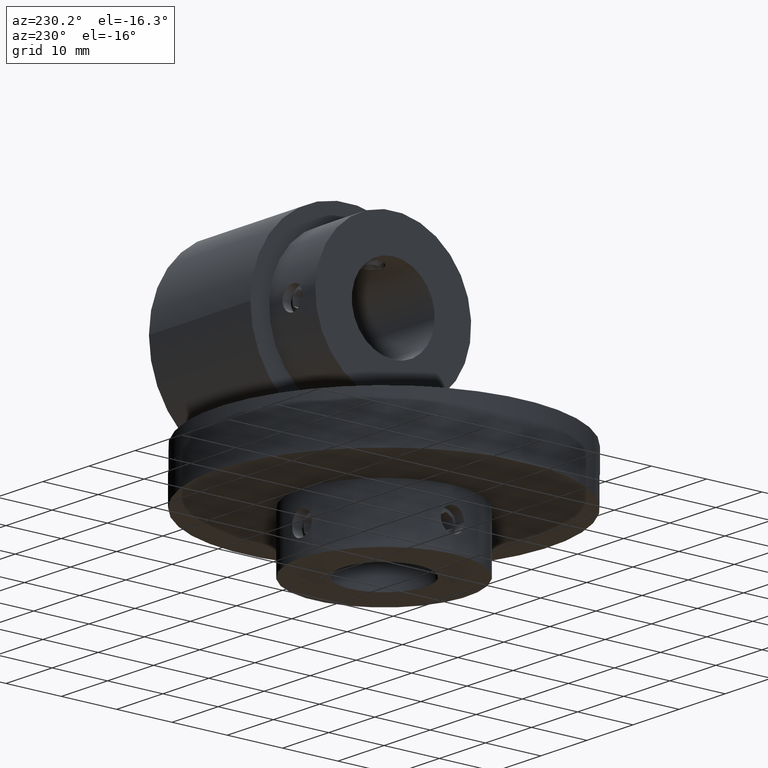
[diagram: clean part render]
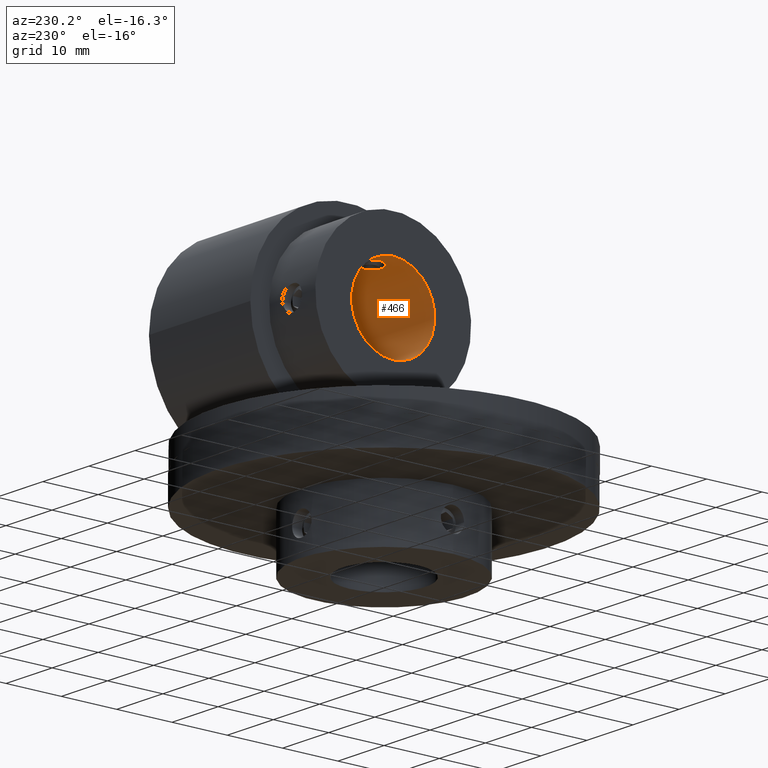
[diagram: same view with one face highlighted and labeled with its STEP entity id]
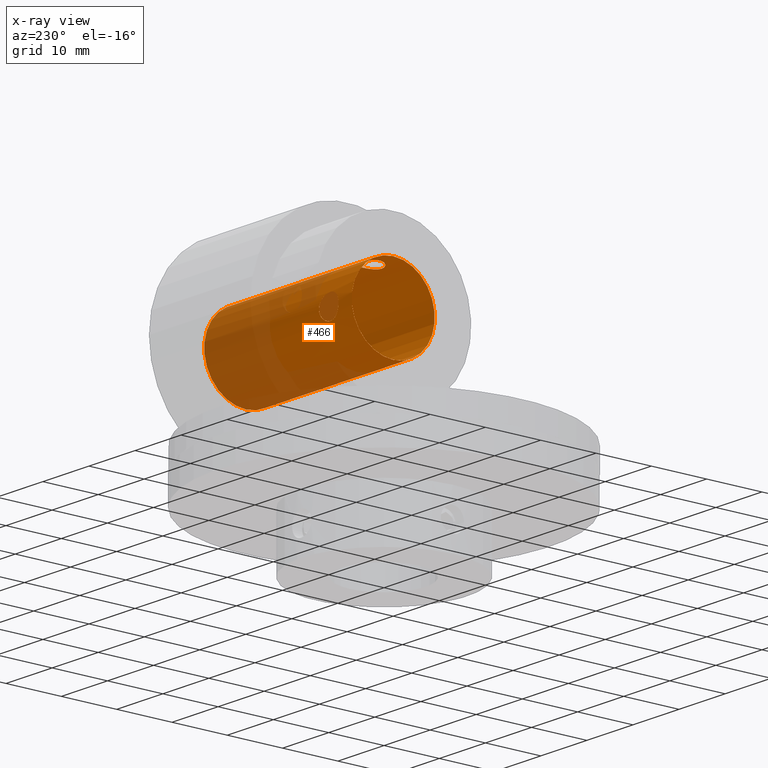
[diagram: x-ray of the same camera — body ghosted, the highlighted face saturated]
A machine part, auxiliary view. The second image highlights one B-rep face of the part: STEP entity #466.
The next image is the same camera in x-ray: the body ghosted, the highlighted face saturated — about 43% of this face is hidden behind the body in this view.
In plain terms, the highlighted cylindrical surface (bore or boss wall) has radius 7.5 mm, axis along (-1, -0, -0).
Its self-contained STEP definition (entity closure, byte-faithful):
#466 = ADVANCED_FACE( '', ( #579, #580, #581, #582 ), #583, .F. );
#579 = FACE_BOUND( '', #763, .T. );
#580 = FACE_OUTER_BOUND( '', #764, .T. );
#581 = FACE_OUTER_BOUND( '', #765, .T. );
#582 = FACE_BOUND( '', #766, .T. );
#583 = CYLINDRICAL_SURFACE( '', #767, 7.50000000000000 );
#763 = EDGE_LOOP( '', ( #973 ) );
#764 = EDGE_LOOP( '', ( #974 ) );
#765 = EDGE_LOOP( '', ( #975 ) );
#766 = EDGE_LOOP( '', ( #976 ) );
#767 = AXIS2_PLACEMENT_3D( '', #977, #978, #979 );
#973 = ORIENTED_EDGE( '', *, *, #1352, .T. );
#974 = ORIENTED_EDGE( '', *, *, #1353, .F. );
#975 = ORIENTED_EDGE( '', *, *, #1354, .T. );
#976 = ORIENTED_EDGE( '', *, *, #1355, .T. );
#977 = CARTESIAN_POINT( '', ( -2.00000000000000, 0.000000000000000, 46.0000000000000 ) );
#978 = DIRECTION( '', ( -1.00000000000000, -0.000000000000000, -0.000000000000000 ) );
#979 = DIRECTION( '', ( 0.000000000000000, -1.83690953073357E-016, -1.00000000000000 ) );
#1352 = EDGE_CURVE( '', #1486, #1486, #1487, .T. );
#1353 = EDGE_CURVE( '', #1488, #1488, #1489, .T. );
#1354 = EDGE_CURVE( '', #1490, #1490, #1491, .T. );
#1355 = EDGE_CURVE( '', #1492, #1492, #1493, .T. );
#1486 = VERTEX_POINT( '', #2020 );
#1487 = B_SPLINE_CURVE_WITH_KNOTS( '', 3, ( #2021, #2022, #2023, #2024, #2025, #2026, #2027, #2028, #2029, #2030, #2031, #2032, #2033, #2034, #2035, #2036, #2037, #2038, #2039, #2040, #2041, #2042, #2043, #2044, #2045, #2046, #2047, #2048, #2049, #2050, #2051, #2052, #2053, #2054, #2055, #2056, #2057, #2058, #2059, #2060, #2061, #2062, #2063, #2064, #2065, #2066, #2067, #2068, #2069, #2070, #2071, #2072, #2073, #2074, #2075, #2076, #2077, #2078 ), .UNSPECIFIED., .T., .F., ( 2, 2, 2, 2, 2, 2, 2, 2, 2, 2, 2, 2, 2, 2, 2, 2, 2, 2, 2, 2, 2, 2, 2, 2, 2, 2, 2, 2, 2, 2, 2 ), ( -0.000412356743134424, 0.000000000000000, 0.000412356743134419, 0.000824713486268838, 0.00123707022940326, 0.00164942697253768, 0.00247414045880650, 0.00288649720194091, 0.00329885394507533, 0.00371121068820974, 0.00412356743134415, 0.00494828091761297, 0.00536063766074739, 0.00577299440388181, 0.00618535114701623, 0.00659770789015065, 0.00742242137641949, 0.00783477811955391, 0.00824713486268834, 0.00865949160582276, 0.00907184834895719, 0.00948420509209161, 0.00989656183522603, 0.0103089185783605, 0.0107212753214949, 0.0115459888077637, 0.0119583455508982, 0.0123707022940326, 0.0127830590371670, 0.0131954157803014, 0.0136077725234358 ), .UNSPECIFIED. );
#1488 = VERTEX_POINT( '', #2079 );
#1489 = CIRCLE( '', #2080, 7.50000000000000 );
#1490 = VERTEX_POINT( '', #2081 );
#1491 = CIRCLE( '', #2082, 7.50000000000000 );
#1492 = VERTEX_POINT( '', #2083 );
#1493 = B_SPLINE_CURVE_WITH_KNOTS( '', 3, ( #2084, #2085, #2086, #2087, #2088, #2089, #2090, #2091, #2092, #2093, #2094, #2095, #2096, #2097, #2098, #2099, #2100, #2101, #2102, #2103, #2104, #2105, #2106, #2107, #2108, #2109, #2110, #2111, #2112, #2113, #2114, #2115, #2116, #2117, #2118, #2119, #2120, #2121, #2122, #2123, #2124, #2125, #2126, #2127, #2128, #2129, #2130, #2131, #2132, #2133, #2134, #2135, #2136, #2137, #2138, #2139, #2140, #2141 ), .UNSPECIFIED., .T., .F., ( 2, 2, 2, 2, 2, 2, 2, 2, 2, 2, 2, 2, 2, 2, 2, 2, 2, 2, 2, 2, 2, 2, 2, 2, 2, 2, 2, 2, 2, 2, 2 ), ( -0.000412356743134420, 0.000000000000000, 0.000412356743134417, 0.000824713486268834, 0.00123707022940325, 0.00164942697253767, 0.00247414045880650, 0.00288649720194092, 0.00329885394507534, 0.00371121068820976, 0.00412356743134418, 0.00494828091761301, 0.00536063766074743, 0.00577299440388185, 0.00618535114701627, 0.00659770789015069, 0.00742242137641952, 0.00783477811955394, 0.00824713486268836, 0.00865949160582278, 0.00907184834895720, 0.00948420509209161, 0.00989656183522603, 0.0103089185783605, 0.0107212753214949, 0.0115459888077637, 0.0119583455508981, 0.0123707022940325, 0.0127830590371670, 0.0131954157803014, 0.0136077725234358 ), .UNSPECIFIED. );
#2020 = CARTESIAN_POINT( '', ( 3.00000000000000, 7.20000000000000, 48.1000000000000 ) );
#2021 = CARTESIAN_POINT( '', ( 2.86051079383211, 7.20000000000000, 48.1000000000000 ) );
#2022 = CARTESIAN_POINT( '', ( 3.13948920616790, 7.20000000000000, 48.1000000000000 ) );
#2023 = CARTESIAN_POINT( '', ( 3.27650011936879, 7.20405292183742, 48.0862414142551 ) );
#2024 = CARTESIAN_POINT( '', ( 3.54581595127848, 7.21940726357042, 48.0324715254817 ) );
#2025 = CARTESIAN_POINT( '', ( 3.67955128617063, 7.23089683666000, 47.9917630124056 ) );
#2026 = CARTESIAN_POINT( '', ( 3.93348559584363, 7.25916486033558, 47.8861374526994 ) );
#2027 = CARTESIAN_POINT( '', ( 4.05381200240748, 7.27584273033177, 47.8216056180004 ) );
#2028 = CARTESIAN_POINT( '', ( 4.28153592789923, 7.31229799957579, 47.6692610429325 ) );
#2029 = CARTESIAN_POINT( '', ( 4.38877417738258, 7.33210722230695, 47.5810952457013 ) );
#2030 = CARTESIAN_POINT( '', ( 4.67770901939105, 7.39047481345485, 47.2920975246587 ) );
#2031 = CARTESIAN_POINT( '', ( 4.83394642242434, 7.42920456576750, 47.0589523139617 ) );
#2032 = CARTESIAN_POINT( '', ( 4.99144246903462, 7.47015885757452, 46.6803247484968 ) );
#2033 = CARTESIAN_POINT( '', ( 5.03216558016718, 7.48124435787328, 46.5472237664003 ) );
#2034 = CARTESIAN_POINT( '', ( 5.08640256801564, 7.49615874116983, 46.2758171856634 ) );
#2035 = CARTESIAN_POINT( '', ( 5.09991129742584, 7.49997516328392, 46.1390888289939 ) );
#2036 = CARTESIAN_POINT( '', ( 5.10008784015311, 7.50002459523820, 45.8636027014615 ) );
#2037 = CARTESIAN_POINT( '', ( 5.08628248424900, 7.49612586812794, 45.7236579659169 ) );
#2038 = CARTESIAN_POINT( '', ( 5.03237470613132, 7.48130171646987, 45.4537467823774 ) );
#2039 = CARTESIAN_POINT( '', ( 4.99249637134749, 7.47043684215666, 45.3224740651094 ) );
#2040 = CARTESIAN_POINT( '', ( 4.83361107020694, 7.42910955956768, 44.9397155229169 ) );
#2041 = CARTESIAN_POINT( '', ( 4.67892402747745, 7.39071258413548, 44.7090385448354 ) );
#2042 = CARTESIAN_POINT( '', ( 4.38771197895451, 7.33189649336024, 44.4178820190464 ) );
#2043 = CARTESIAN_POINT( '', ( 4.28245749549140, 7.31246627832060, 44.3314843991286 ) );
#2044 = CARTESIAN_POINT( '', ( 4.05561313778394, 7.27611056406483, 44.1794719333580 ) );
#2045 = CARTESIAN_POINT( '', ( 3.93266240970163, 7.25906560673442, 44.1134863411944 ) );
#2046 = CARTESIAN_POINT( '', ( 3.67949017052075, 7.23089767623899, 44.0082454811156 ) );
#2047 = CARTESIAN_POINT( '', ( 3.54857276517990, 7.21960240900513, 43.9682176565058 ) );
#2048 = CARTESIAN_POINT( '', ( 3.27777166637916, 7.20408800363090, 43.9138757296391 ) );
#2049 = CARTESIAN_POINT( '', ( 3.13837507395539, 7.20001740449555, 43.9000596725622 ) );
#2050 = CARTESIAN_POINT( '', ( 2.72597559870375, 7.19996536299256, 43.8998812445338 ) );
#2051 = CARTESIAN_POINT( '', ( 2.44835208361356, 7.21672065655319, 43.9553100020404 ) );
#2052 = CARTESIAN_POINT( '', ( 2.06873467651570, 7.25888700184066, 44.1128028587008 ) );
#2053 = CARTESIAN_POINT( '', ( 1.94584354248317, 7.27589427214860, 44.1786024626543 ) );
#2054 = CARTESIAN_POINT( '', ( 1.71833416119732, 7.31232240433326, 44.3308482682453 ) );
#2055 = CARTESIAN_POINT( '', ( 1.61304037116556, 7.33175589729408, 44.4172468931832 ) );
#2056 = CARTESIAN_POINT( '', ( 1.41918183268799, 7.37088689396287, 44.6108353837464 ) );
#2057 = CARTESIAN_POINT( '', ( 1.33118396836139, 7.39050129786872, 44.7179557279681 ) );
#2058 = CARTESIAN_POINT( '', ( 1.17943689403648, 7.42623811287658, 44.9444743299624 ) );
#2059 = CARTESIAN_POINT( '', ( 1.11459240085392, 7.44258783786747, 45.0648719796685 ) );
#2060 = CARTESIAN_POINT( '', ( 1.00800750184376, 7.47030026318660, 45.3208887303128 ) );
#2061 = CARTESIAN_POINT( '', ( 0.967987690843787, 7.48120318696443, 45.4525071469485 ) );
#2062 = CARTESIAN_POINT( '', ( 0.914027359347518, 7.49603955149885, 45.7215388875370 ) );
#2063 = CARTESIAN_POINT( '', ( 0.900052756984316, 7.49998522804537, 45.8607435664518 ) );
#2064 = CARTESIAN_POINT( '', ( 0.899947546153758, 7.50001468707597, 46.1376607018292 ) );
#2065 = CARTESIAN_POINT( '', ( 0.913456180539298, 7.49619887339965, 46.2744442680153 ) );
#2066 = CARTESIAN_POINT( '', ( 0.967203356458700, 7.48141661939912, 46.5447224731763 ) );
#2067 = CARTESIAN_POINT( '', ( 1.00800217080563, 7.47030649055486, 46.6787726655043 ) );
#2068 = CARTESIAN_POINT( '', ( 1.16570114339627, 7.42928981401194, 47.0585359873267 ) );
#2069 = CARTESIAN_POINT( '', ( 1.32189362771703, 7.39056797812511, 47.2915668506141 ) );
#2070 = CARTESIAN_POINT( '', ( 1.61065538694126, 7.33221603367517, 47.5805910374731 ) );
#2071 = CARTESIAN_POINT( '', ( 1.71750835470647, 7.31246252574487, 47.6685500660730 ) );
#2072 = CARTESIAN_POINT( '', ( 1.94563527795584, 7.27591975885293, 47.8213069966781 ) );
#2073 = CARTESIAN_POINT( '', ( 2.06587742188369, 7.25925516121940, 47.8857864002003 ) );
#2074 = CARTESIAN_POINT( '', ( 2.31884614110164, 7.23105601445847, 47.9911817492723 ) );
#2075 = CARTESIAN_POINT( '', ( 2.45285145320165, 7.21949857810980, 48.0321494172675 ) );
#2076 = CARTESIAN_POINT( '', ( 2.72319522415863, 7.20405504358444, 48.0862363007185 ) );
#2077 = CARTESIAN_POINT( '', ( 2.86051079383211, 7.20000000000000, 48.1000000000000 ) );
#2078 = CARTESIAN_POINT( '', ( 3.13948920616790, 7.20000000000000, 48.1000000000000 ) );
#2079 = CARTESIAN_POINT( '', ( -2.00000000000000, -1.37768214805017E-015, 38.5000000000000 ) );
#2080 = AXIS2_PLACEMENT_3D( '', #2502, #2503, #2504 );
#2081 = CARTESIAN_POINT( '', ( 30.0000000000000, -1.37768214805017E-015, 38.5000000000000 ) );
#2082 = AXIS2_PLACEMENT_3D( '', #2505, #2506, #2507 );
#2083 = CARTESIAN_POINT( '', ( 3.00000000000000, -2.10000000000000, 53.2000000000000 ) );
#2084 = CARTESIAN_POINT( '', ( 2.86051079383211, -2.10000000000000, 53.2000000000000 ) );
#2085 = CARTESIAN_POINT( '', ( 3.13948920616790, -2.10000000000000, 53.2000000000000 ) );
#2086 = CARTESIAN_POINT( '', ( 3.27650011936879, -2.08624141425508, 53.2040529218374 ) );
#2087 = CARTESIAN_POINT( '', ( 3.54581595127848, -2.03247152548171, 53.2194072635704 ) );
#2088 = CARTESIAN_POINT( '', ( 3.67955128617063, -1.99176301240558, 53.2308968366600 ) );
#2089 = CARTESIAN_POINT( '', ( 3.93348559584363, -1.88613745269945, 53.2591648603356 ) );
#2090 = CARTESIAN_POINT( '', ( 4.05381200240748, -1.82160561800035, 53.2758427303318 ) );
#2091 = CARTESIAN_POINT( '', ( 4.28153592789923, -1.66926104293246, 53.3122979995758 ) );
#2092 = CARTESIAN_POINT( '', ( 4.38877417738258, -1.58109524570128, 53.3321072223070 ) );
#2093 = CARTESIAN_POINT( '', ( 4.67770901939105, -1.29209752465871, 53.3904748134549 ) );
#2094 = CARTESIAN_POINT( '', ( 4.83394642242434, -1.05895231396171, 53.4292045657675 ) );
#2095 = CARTESIAN_POINT( '', ( 4.99144246903462, -0.680324748496844, 53.4701588575745 ) );
#2096 = CARTESIAN_POINT( '', ( 5.03216558016718, -0.547223766400330, 53.4812443578733 ) );
#2097 = CARTESIAN_POINT( '', ( 5.08640256801564, -0.275817185663433, 53.4961587411698 ) );
#2098 = CARTESIAN_POINT( '', ( 5.09991129742584, -0.139088828993864, 53.4999751632839 ) );
#2099 = CARTESIAN_POINT( '', ( 5.10008784015311, 0.136397298538484, 53.5000245952382 ) );
#2100 = CARTESIAN_POINT( '', ( 5.08628248424900, 0.276342034083099, 53.4961258681280 ) );
#2101 = CARTESIAN_POINT( '', ( 5.03237470613132, 0.546253217622565, 53.4813017164699 ) );
#2102 = CARTESIAN_POINT( '', ( 4.99249637134748, 0.677525934890556, 53.4704368421567 ) );
#2103 = CARTESIAN_POINT( '', ( 4.83361107020694, 1.06028447708312, 53.4291095595677 ) );
#2104 = CARTESIAN_POINT( '', ( 4.67892402747746, 1.29096145516466, 53.3907125841355 ) );
#2105 = CARTESIAN_POINT( '', ( 4.38771197895451, 1.58211798095359, 53.3318964933603 ) );
#2106 = CARTESIAN_POINT( '', ( 4.28245749549140, 1.66851560087141, 53.3124662783206 ) );
#2107 = CARTESIAN_POINT( '', ( 4.05561313778394, 1.82052806664201, 53.2761105640648 ) );
#2108 = CARTESIAN_POINT( '', ( 3.93266240970163, 1.88651365880559, 53.2590656067344 ) );
#2109 = CARTESIAN_POINT( '', ( 3.67949017052076, 1.99175451888433, 53.2308976762390 ) );
#2110 = CARTESIAN_POINT( '', ( 3.54857276517990, 2.03178234349418, 53.2196024090051 ) );
#2111 = CARTESIAN_POINT( '', ( 3.27777166637916, 2.08612427036089, 53.2040880036309 ) );
#2112 = CARTESIAN_POINT( '', ( 3.13837507395539, 2.09994032743777, 53.2000174044955 ) );
#2113 = CARTESIAN_POINT( '', ( 2.72597559870376, 2.10011875546613, 53.1999653629926 ) );
#2114 = CARTESIAN_POINT( '', ( 2.44835208361356, 2.04468999795952, 53.2167206565532 ) );
#2115 = CARTESIAN_POINT( '', ( 2.06873467651570, 1.88719714129923, 53.2588870018407 ) );
#2116 = CARTESIAN_POINT( '', ( 1.94584354248317, 1.82139753734566, 53.2758942721486 ) );
#2117 = CARTESIAN_POINT( '', ( 1.71833416119732, 1.66915173175464, 53.3123224043333 ) );
#2118 = CARTESIAN_POINT( '', ( 1.61304037116556, 1.58275310681679, 53.3317558972941 ) );
#2119 = CARTESIAN_POINT( '', ( 1.41918183268799, 1.38916461625362, 53.3708868939629 ) );
#2120 = CARTESIAN_POINT( '', ( 1.33118396836139, 1.28204427203193, 53.3905012978687 ) );
#2121 = CARTESIAN_POINT( '', ( 1.17943689403648, 1.05552567003761, 53.4262381128766 ) );
#2122 = CARTESIAN_POINT( '', ( 1.11459240085392, 0.935128020331472, 53.4425878378675 ) );
#2123 = CARTESIAN_POINT( '', ( 1.00800750184376, 0.679111269687177, 53.4703002631866 ) );
#2124 = CARTESIAN_POINT( '', ( 0.967987690843787, 0.547492853051494, 53.4812031869644 ) );
#2125 = CARTESIAN_POINT( '', ( 0.914027359347517, 0.278461112463017, 53.4960395514989 ) );
#2126 = CARTESIAN_POINT( '', ( 0.900052756984316, 0.139256433548173, 53.4999852280454 ) );
#2127 = CARTESIAN_POINT( '', ( 0.899947546153757, -0.137660701829190, 53.5000146870760 ) );
#2128 = CARTESIAN_POINT( '', ( 0.913456180539298, -0.274444268015260, 53.4961988733997 ) );
#2129 = CARTESIAN_POINT( '', ( 0.967203356458698, -0.544722473176304, 53.4814166193991 ) );
#2130 = CARTESIAN_POINT( '', ( 1.00800217080563, -0.678772665504258, 53.4703064905549 ) );
#2131 = CARTESIAN_POINT( '', ( 1.16570114339627, -1.05853598732669, 53.4292898140119 ) );
#2132 = CARTESIAN_POINT( '', ( 1.32189362771703, -1.29156685061416, 53.3905679781251 ) );
#2133 = CARTESIAN_POINT( '', ( 1.61065538694126, -1.58059103747306, 53.3322160336752 ) );
#2134 = CARTESIAN_POINT( '', ( 1.71750835470647, -1.66855006607296, 53.3124625257449 ) );
#2135 = CARTESIAN_POINT( '', ( 1.94563527795584, -1.82130699667808, 53.2759197588529 ) );
#2136 = CARTESIAN_POINT( '', ( 2.06587742188369, -1.88578640020033, 53.2592551612194 ) );
#2137 = CARTESIAN_POINT( '', ( 2.31884614110164, -1.99118174927229, 53.2310560144585 ) );
#2138 = CARTESIAN_POINT( '', ( 2.45285145320165, -2.03214941726750, 53.2194985781098 ) );
#2139 = CARTESIAN_POINT( '', ( 2.72319522415862, -2.08623630071849, 53.2040550435844 ) );
#2140 = CARTESIAN_POINT( '', ( 2.86051079383211, -2.10000000000000, 53.2000000000000 ) );
#2141 = CARTESIAN_POINT( '', ( 3.13948920616790, -2.10000000000000, 53.2000000000000 ) );
#2502 = CARTESIAN_POINT( '', ( -2.00000000000000, 0.000000000000000, 46.0000000000000 ) );
#2503 = DIRECTION( '', ( 1.00000000000000, 0.000000000000000, 0.000000000000000 ) );
#2504 = DIRECTION( '', ( 0.000000000000000, -1.83690953073357E-016, -1.00000000000000 ) );
#2505 = CARTESIAN_POINT( '', ( 30.0000000000000, 0.000000000000000, 46.0000000000000 ) );
#2506 = DIRECTION( '', ( 1.00000000000000, 0.000000000000000, 0.000000000000000 ) );
#2507 = DIRECTION( '', ( 0.000000000000000, -1.83690953073357E-016, -1.00000000000000 ) );